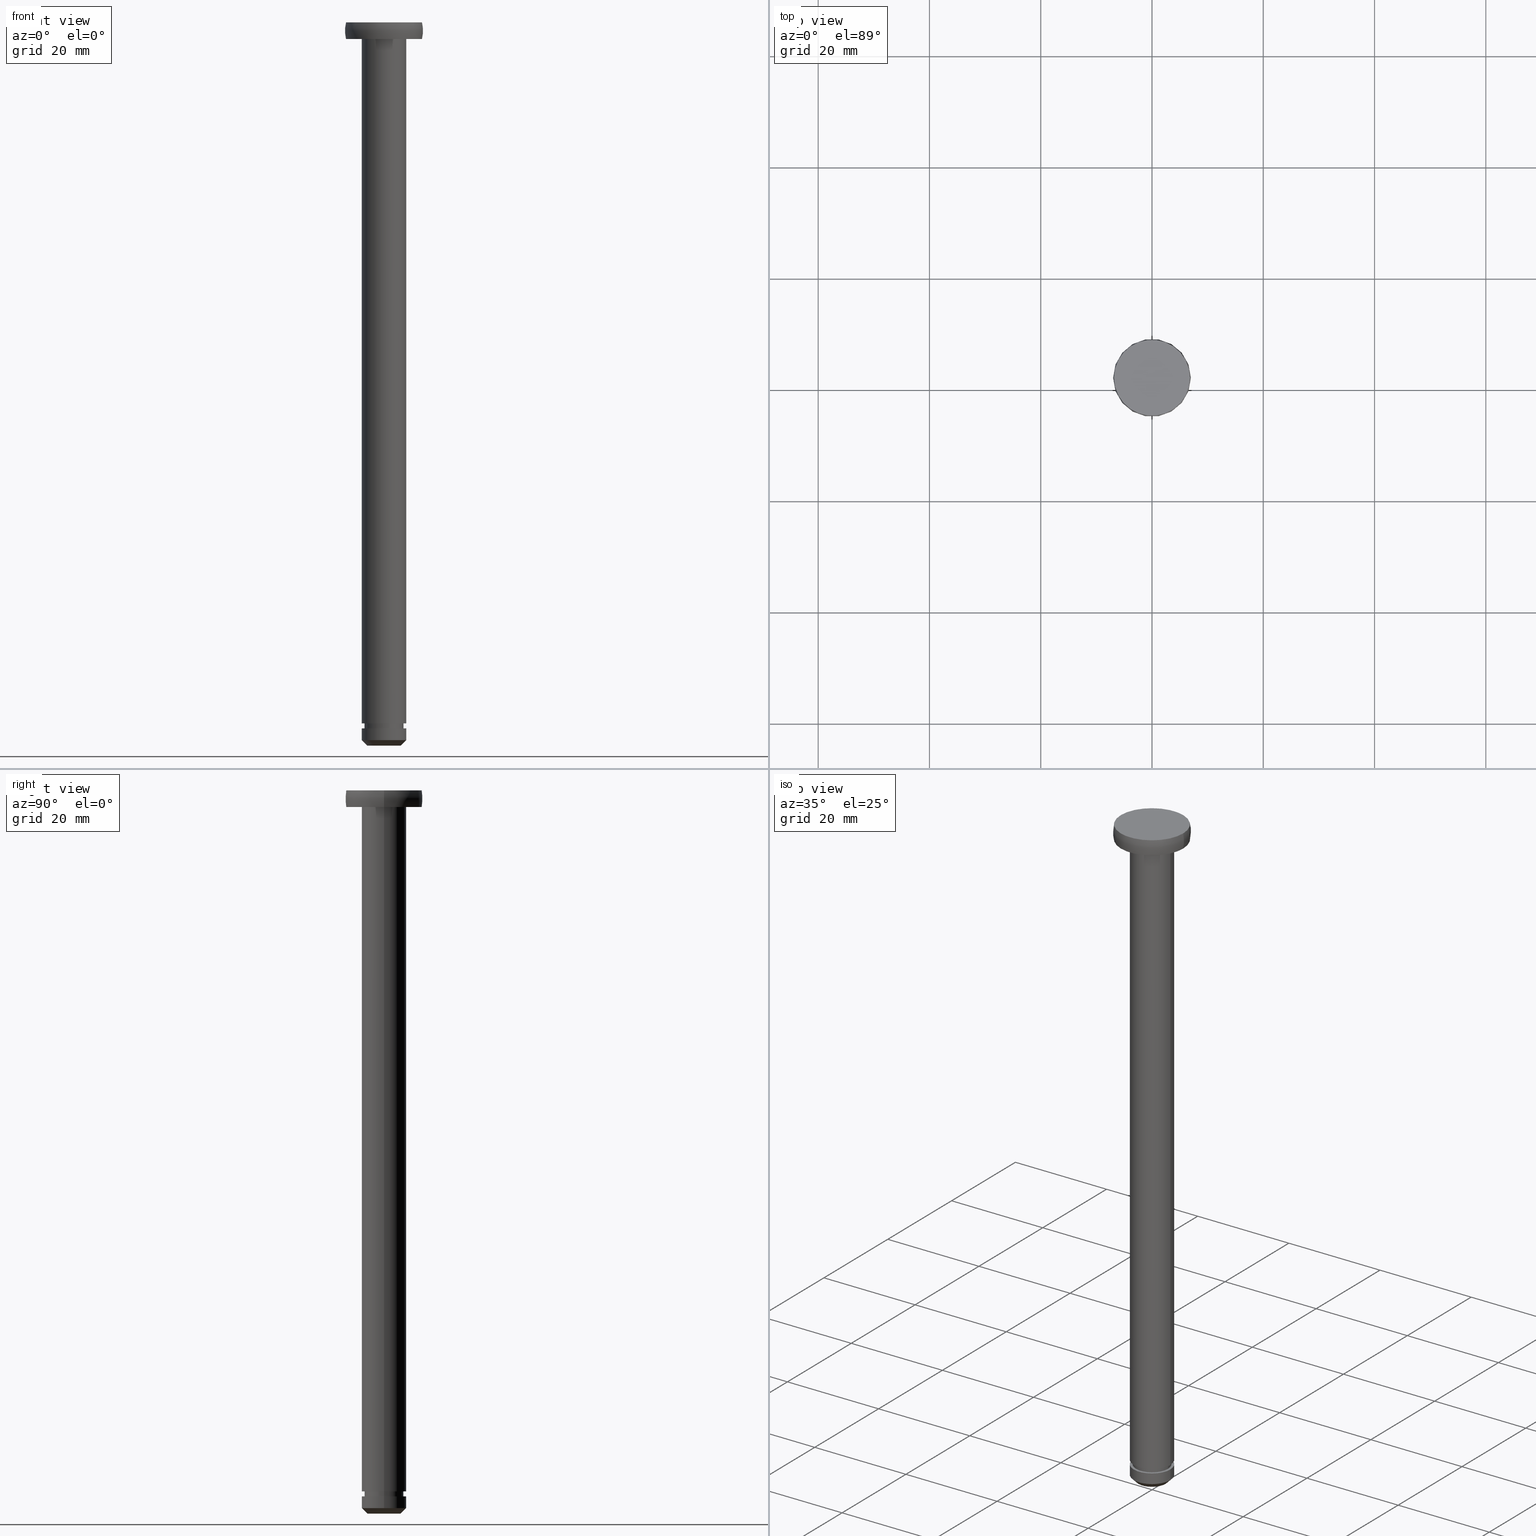
[diagram: canonical four-view strip — front | top / right | iso, engineering-drawing reading convention]
A machine part, canonical four-view strip (front | top / right | iso — engineering-drawing reading convention). The complete STEP part file that produces these views, byte-faithful:
ISO-10303-21;
HEADER;
FILE_DESCRIPTION (( 'STEP AP214' ),
    '1' );
FILE_NAME ('TH_121_8_127.STEP',
    '2016-08-24T01:59:59',
    ( '' ),
    ( '' ),
    'SwSTEP 2.0',
    'SolidWorks 2015',
    '' );
FILE_SCHEMA (( 'AUTOMOTIVE_DESIGN' ));
ENDSEC;

DATA;
#1 = FACE_OUTER_BOUND ( 'NONE', #102, .T. ) ;
#2 = CONTEXT_DEPENDENT_SHAPE_REPRESENTATION ( #333, #464 ) ;
#3 = CARTESIAN_POINT ( 'NONE',  ( 3.500000000000000000, 4.286263797015736600E-016, -126.9000000360870100 ) ) ;
#4 = ORIENTED_EDGE ( 'NONE', *, *, #158, .F. ) ;
#5 = PRODUCT_DEFINITION_SHAPE ( 'NONE', 'NONE',  #153 ) ;
#6 = VERTEX_POINT ( 'NONE', #292 ) ;
#7 = CARTESIAN_POINT ( 'NONE',  ( -0.3572332087698980000, 0.0000000000000000000, -1.500000009021705200 ) ) ;
#8 = CARTESIAN_POINT ( 'NONE',  ( 3.500000000000000000, 0.0000000000000000000, -126.0000000360870000 ) ) ;
#9 = EDGE_CURVE ( 'NONE', #257, #26, #89, .T. ) ;
#10 = SHAPE_DEFINITION_REPRESENTATION ( #55, #355 ) ;
#11 = ORIENTED_EDGE ( 'NONE', *, *, #151, .T. ) ;
#12 = DIRECTION ( 'NONE',  ( 1.000000000000000000, 0.0000000000000000000, 0.0000000000000000000 ) ) ;
#13 = ADVANCED_FACE ( 'NONE', ( #410 ), #370, .T. ) ;
#14 = EDGE_LOOP ( 'NONE', ( #249, #182, #436, #61 ) ) ;
#15 = ADVANCED_FACE ( 'NONE', ( #289, #353 ), #431, .T. ) ;
#16 = DIRECTION ( 'NONE',  ( -1.000000000000000000, 0.0000000000000000000, 0.0000000000000000000 ) ) ;
#17 = CIRCLE ( 'NONE', #266, 4.000000000000000000 ) ;
#18 = DIRECTION ( 'NONE',  ( -1.000000000000000000, 0.0000000000000000000, 0.0000000000000000000 ) ) ;
#19 = LINE ( 'NONE', #377, #84 ) ;
#20 = AXIS2_PLACEMENT_3D ( 'NONE', #265, #199, #33 ) ;
#21 = CARTESIAN_POINT ( 'NONE',  ( 0.0000000000000000000, 0.0000000000000000000, 5.243895595530290800E-014 ) ) ;
#22 = AXIS2_PLACEMENT_3D ( 'NONE', #248, #104, #327 ) ;
#23 = DIRECTION ( 'NONE',  ( 0.0000000000000000000, 0.0000000000000000000, -1.000000000000000000 ) ) ;
#24 = CLOSED_SHELL ( 'NONE', ( #452, #345, #230, #192, #385, #341, #122, #13, #157, #91, #316, #161, #48, #275, #15 ) ) ;
#25 = EDGE_LOOP ( 'NONE', ( #319, #87 ) ) ;
#26 = VERTEX_POINT ( 'NONE', #3 ) ;
#27 = DIRECTION ( 'NONE',  ( 0.0000000000000000000, 0.0000000000000000000, -1.000000000000000000 ) ) ;
#28 = EDGE_CURVE ( 'NONE', #360, #159, #245, .T. ) ;
#29 = DIRECTION ( 'NONE',  ( 0.0000000000000000000, 0.0000000000000000000, -1.000000000000000000 ) ) ;
#30 = CARTESIAN_POINT ( 'NONE',  ( 4.000000000000000000, 0.0000000000000000000, -126.9000000360870100 ) ) ;
#31 = CYLINDRICAL_SURFACE ( 'NONE', #239, 3.999999999999998200 ) ;
#32 = CARTESIAN_POINT ( 'NONE',  ( 0.0000000000000000000, 0.0000000000000000000, -130.0000000360869900 ) ) ;
#33 = DIRECTION ( 'NONE',  ( -1.000000000000000000, 0.0000000000000000000, 0.0000000000000000000 ) ) ;
#34 = ORIENTED_EDGE ( 'NONE', *, *, #151, .F. ) ;
#35 = DIRECTION ( 'NONE',  ( 0.0000000000000000000, 0.0000000000000000000, 1.000000000000000000 ) ) ;
#36 = FACE_OUTER_BOUND ( 'NONE', #120, .T. ) ;
#37 = EDGE_CURVE ( 'NONE', #360, #163, #406, .T. ) ;
#38 = PLANE ( 'NONE',  #466 ) ;
#39 = ORIENTED_EDGE ( 'NONE', *, *, #432, .T. ) ;
#40 = PRESENTATION_LAYER_ASSIGNMENT (  '', '', ( #69 ) ) ;
#41 = FACE_OUTER_BOUND ( 'NONE', #14, .T. ) ;
#42 = DIRECTION ( 'NONE',  ( 0.0000000000000000000, 0.0000000000000000000, -1.000000000000000000 ) ) ;
#43 = DIRECTION ( 'NONE',  ( 0.0000000000000000000, 0.0000000000000000000, -1.000000000000000000 ) ) ;
#44 = AXIS2_PLACEMENT_3D ( 'NONE', #32, #29, #16 ) ;
#45 = DIRECTION ( 'NONE',  ( 0.0000000000000000000, 0.0000000000000000000, -1.000000000000000000 ) ) ;
#46 = VECTOR ( 'NONE', #50, 1000.000000000000000 ) ;
#47 = DIRECTION ( 'NONE',  ( 0.0000000000000000000, 0.0000000000000000000, -1.000000000000000000 ) ) ;
#48 = ADVANCED_FACE ( 'NONE', ( #270, #457 ), #290, .T. ) ;
#49 = ORIENTED_EDGE ( 'NONE', *, *, #330, .F. ) ;
#50 = DIRECTION ( 'NONE',  ( 0.0000000000000000000, 0.0000000000000000000, -1.000000000000000000 ) ) ;
#51 = TOROIDAL_SURFACE ( 'NONE', #210, 0.3572332087698980000, 6.642766791230087600 ) ;
#52 = AXIS2_PLACEMENT_3D ( 'NONE', #183, #123, #12 ) ;
#53 = ORIENTED_EDGE ( 'NONE', *, *, #58, .F. ) ;
#54 = CARTESIAN_POINT ( 'NONE',  ( -3.500000000000000000, 0.0000000000000000000, -126.9000000360870100 ) ) ;
#55 = PRODUCT_DEFINITION_SHAPE ( 'NONE', 'NONE',  #203 ) ;
#56 = EDGE_CURVE ( 'NONE', #439, #237, #19, .T. ) ;
#57 = VERTEX_POINT ( 'NONE', #337 ) ;
#58 = EDGE_CURVE ( 'NONE', #111, #72, #371, .T. ) ;
#59 = AXIS2_PLACEMENT_3D ( 'NONE', #287, #60, #181 ) ;
#60 = DIRECTION ( 'NONE',  ( 0.0000000000000000000, 0.0000000000000000000, 1.000000000000000000 ) ) ;
#61 = ORIENTED_EDGE ( 'NONE', *, *, #247, .F. ) ;
#62 = FACE_OUTER_BOUND ( 'NONE', #208, .T. ) ;
#63 = EDGE_LOOP ( 'NONE', ( #269, #322, #351, #450 ) ) ;
#64 = DIRECTION ( 'NONE',  ( 0.0000000000000000000, 0.0000000000000000000, -1.000000000000000000 ) ) ;
#65 = CYLINDRICAL_SURFACE ( 'NONE', #401, 3.999999999999998200 ) ;
#66 = LINE ( 'NONE', #83, #349 ) ;
#67 = ORIENTED_EDGE ( 'NONE', *, *, #169, .F. ) ;
#68 = DIRECTION ( 'NONE',  ( 1.000000000000000000, 0.0000000000000000000, 0.0000000000000000000 ) ) ;
#69 = STYLED_ITEM ( 'NONE', ( #300 ), #369 ) ;
#70 = COLOUR_RGB ( '',0.7921568627450980000, 0.8196078431372548800, 0.9333333333333333500 ) ;
#71 = DIRECTION ( 'NONE',  ( -0.7071067811865463500, 8.659560562354918100E-017, 0.7071067811865487900 ) ) ;
#72 = VERTEX_POINT ( 'NONE', #375 ) ;
#73 = SHAPE_REPRESENTATION_RELATIONSHIP ( 'NONE' , 'NONE' ,  #362, #241 ) ;
#74 = FACE_OUTER_BOUND ( 'NONE', #25, .T. ) ;
#75 = DIRECTION ( 'NONE',  ( -1.000000000000000000, 0.0000000000000000000, 0.0000000000000000000 ) ) ;
#76 = AXIS2_PLACEMENT_3D ( 'NONE', #207, #180, #331 ) ;
#77 = DIRECTION ( 'NONE',  ( 0.0000000000000000000, 0.0000000000000000000, -1.000000000000000000 ) ) ;
#78 = VERTEX_POINT ( 'NONE', #380 ) ;
#79 = CIRCLE ( 'NONE', #277, 3.000000000000000000 ) ;
#80 = AXIS2_PLACEMENT_3D ( 'NONE', #156, #222, #417 ) ;
#81 = VERTEX_POINT ( 'NONE', #119 ) ;
#82 = DIRECTION ( 'NONE',  ( -1.000000000000000000, 0.0000000000000000000, 0.0000000000000000000 ) ) ;
#83 = CARTESIAN_POINT ( 'NONE',  ( 4.000000000000000000, 4.898587196589412800E-016, 5.243895611412157900E-014 ) ) ;
#84 = VECTOR ( 'NONE', #384, 1000.000000000000000 ) ;
#85 = EDGE_CURVE ( 'NONE', #26, #299, #308, .T. ) ;
#86 = TOROIDAL_SURFACE ( 'NONE', #20, 0.3572332087698980000, 6.642766791230087600 ) ;
#87 = ORIENTED_EDGE ( 'NONE', *, *, #209, .F. ) ;
#88 = AXIS2_PLACEMENT_3D ( 'NONE', #294, #35, #358 ) ;
#89 = LINE ( 'NONE', #468, #392 ) ;
#90 = CARTESIAN_POINT ( 'NONE',  ( -3.500000000000000000, 0.0000000000000000000, 5.243895611412157900E-014 ) ) ;
#91 = ADVANCED_FACE ( 'NONE', ( #36 ), #31, .T. ) ;
#92 = DIRECTION ( 'NONE',  ( 0.0000000000000000000, 0.0000000000000000000, -1.000000000000000000 ) ) ;
#93 = ORIENTED_EDGE ( 'NONE', *, *, #310, .F. ) ;
#94 = CARTESIAN_POINT ( 'NONE',  ( 0.0000000000000000000, 0.0000000000000000000, 5.243895611412157900E-014 ) ) ;
#95 = AXIS2_PLACEMENT_3D ( 'NONE', #354, #45, #307 ) ;
#96 = APPLICATION_PROTOCOL_DEFINITION ( 'draft international standard', 'automotive_design', 1998, #373 ) ;
#97 =( LENGTH_UNIT ( ) NAMED_UNIT ( * ) SI_UNIT ( .MILLI., .METRE. ) );
#98 = CYLINDRICAL_SURFACE ( 'NONE', #95, 3.500000000000000000 ) ;
#99 = EDGE_LOOP ( 'NONE', ( #176, #172 ) ) ;
#100 = ORIENTED_EDGE ( 'NONE', *, *, #344, .F. ) ;
#101 = FACE_OUTER_BOUND ( 'NONE', #240, .T. ) ;
#102 = EDGE_LOOP ( 'NONE', ( #67, #53 ) ) ;
#103 = AXIS2_PLACEMENT_3D ( 'NONE', #437, #425, #422 ) ;
#104 = DIRECTION ( 'NONE',  ( 0.0000000000000000000, 0.0000000000000000000, -1.000000000000000000 ) ) ;
#105 = DIRECTION ( 'NONE',  ( 0.0000000000000000000, 0.0000000000000000000, -1.000000000000000000 ) ) ;
#106 = APPLICATION_PROTOCOL_DEFINITION ( 'draft international standard', 'automotive_design', 1998, #400 ) ;
#107 = EDGE_CURVE ( 'NONE', #299, #26, #205, .T. ) ;
#108 =( GEOMETRIC_REPRESENTATION_CONTEXT ( 3 ) GLOBAL_UNCERTAINTY_ASSIGNED_CONTEXT ( ( #264 ) ) GLOBAL_UNIT_ASSIGNED_CONTEXT ( ( #97, #170, #357 ) ) REPRESENTATION_CONTEXT ( 'NONE', 'WORKASPACE' ) );
#109 = CARTESIAN_POINT ( 'NONE',  ( 3.500000000000000000, 4.286263797015736600E-016, -126.0000000360870000 ) ) ;
#110 = CARTESIAN_POINT ( 'NONE',  ( 0.0000000000000000000, 0.0000000000000000000, 5.243895611412157900E-014 ) ) ;
#111 = VERTEX_POINT ( 'NONE', #334 ) ;
#112 = DIRECTION ( 'NONE',  ( -1.000000000000000000, 0.0000000000000000000, 0.0000000000000000000 ) ) ;
#113 = VERTEX_POINT ( 'NONE', #224 ) ;
#114 = MECHANICAL_DESIGN_GEOMETRIC_PRESENTATION_REPRESENTATION (  '', ( #69 ), #138 ) ;
#115 = CARTESIAN_POINT ( 'NONE',  ( 0.0000000000000000000, 0.0000000000000000000, -126.9000000360870100 ) ) ;
#116 = ORIENTED_EDGE ( 'NONE', *, *, #129, .T. ) ;
#117 = DIRECTION ( 'NONE',  ( 0.0000000000000000000, 0.0000000000000000000, -1.000000000000000000 ) ) ;
#118 = AXIS2_PLACEMENT_3D ( 'NONE', #190, #446, #419 ) ;
#119 = CARTESIAN_POINT ( 'NONE',  ( 6.828427118366800400, 8.362411413718889200E-016, -3.000000018043434700 ) ) ;
#120 = EDGE_LOOP ( 'NONE', ( #201, #461, #324, #454 ) ) ;
#121 = DIRECTION ( 'NONE',  ( 0.7071067811865463500, 0.0000000000000000000, 0.7071067811865487900 ) ) ;
#122 = ADVANCED_FACE ( 'NONE', ( #74 ), #314, .T. ) ;
#123 = DIRECTION ( 'NONE',  ( 0.0000000000000000000, -0.0000000000000000000, 1.000000000000000000 ) ) ;
#124 = AXIS2_PLACEMENT_3D ( 'NONE', #438, #150, #348 ) ;
#125 = FACE_OUTER_BOUND ( 'NONE', #433, .T. ) ;
#126 = DIRECTION ( 'NONE',  ( 0.0000000000000000000, 0.0000000000000000000, -1.000000000000000000 ) ) ;
#127 = VERTEX_POINT ( 'NONE', #187 ) ;
#128 = APPLICATION_PROTOCOL_DEFINITION ( 'draft international standard', 'automotive_design', 1998, #216 ) ;
#129 = EDGE_CURVE ( 'NONE', #81, #6, #145, .T. ) ;
#130 = LINE ( 'NONE', #160, #347 ) ;
#131 = AXIS2_PLACEMENT_3D ( 'NONE', #361, #133, #68 ) ;
#132 = EDGE_CURVE ( 'NONE', #163, #424, #155, .T. ) ;
#133 = DIRECTION ( 'NONE',  ( 0.0000000000000000000, 0.0000000000000000000, 1.000000000000000000 ) ) ;
#134 = CIRCLE ( 'NONE', #146, 4.000000000000000000 ) ;
#135 =( NAMED_UNIT ( * ) PLANE_ANGLE_UNIT ( ) SI_UNIT ( $, .RADIAN. ) );
#136 = CARTESIAN_POINT ( 'NONE',  ( 0.0000000000000000000, 0.0000000000000000000, -3.000000018043495100 ) ) ;
#137 = EDGE_LOOP ( 'NONE', ( #11, #335, #282, #165 ) ) ;
#138 =( GEOMETRIC_REPRESENTATION_CONTEXT ( 3 ) GLOBAL_UNCERTAINTY_ASSIGNED_CONTEXT ( ( #444 ) ) GLOBAL_UNIT_ASSIGNED_CONTEXT ( ( #367, #135, #260 ) ) REPRESENTATION_CONTEXT ( 'NONE', 'WORKASPACE' ) );
#139 = ORIENTED_EDGE ( 'NONE', *, *, #310, .T. ) ;
#140 = AXIS2_PLACEMENT_3D ( 'NONE', #8, #77, #388 ) ;
#141 = CARTESIAN_POINT ( 'NONE',  ( -4.000000000000000000, 0.0000000000000000000, -3.000000018043495100 ) ) ;
#142 = CARTESIAN_POINT ( 'NONE',  ( -4.000000000000000000, 0.0000000000000000000, -126.0000000360870000 ) ) ;
#143 = CIRCLE ( 'NONE', #442, 6.642766791230087600 ) ;
#144 = CARTESIAN_POINT ( 'NONE',  ( 3.000000000000000000, 0.0000000000000000000, -130.0000000360869900 ) ) ;
#145 = CIRCLE ( 'NONE', #273, 6.828427118366800400 ) ;
#146 = AXIS2_PLACEMENT_3D ( 'NONE', #332, #318, #456 ) ;
#147 = DIRECTION ( 'NONE',  ( 1.000000000000000000, 0.0000000000000000000, 0.0000000000000000000 ) ) ;
#148 = ORIENTED_EDGE ( 'NONE', *, *, #382, .F. ) ;
#149 = PRODUCT ( 'shaft', 'shaft', '', ( #321 ) ) ;
#150 = DIRECTION ( 'NONE',  ( -0.0000000000000000000, -0.0000000000000000000, 1.000000000000000000 ) ) ;
#151 = EDGE_CURVE ( 'NONE', #113, #257, #188, .T. ) ;
#152 = DIRECTION ( 'NONE',  ( -1.000000000000000000, 0.0000000000000000000, 0.0000000000000000000 ) ) ;
#153 = PRODUCT_DEFINITION ( 'UNKNOWN', '', #285, #235 ) ;
#154 = DIRECTION ( 'NONE',  ( 0.0000000000000000000, 0.0000000000000000000, -1.000000000000000000 ) ) ;
#155 = CIRCLE ( 'NONE', #80, 3.999999999999997300 ) ;
#156 = CARTESIAN_POINT ( 'NONE',  ( 0.0000000000000000000, 0.0000000000000000000, -129.0000000360869900 ) ) ;
#157 = ADVANCED_FACE ( 'NONE', ( #62 ), #271, .T. ) ;
#158 = EDGE_CURVE ( 'NONE', #237, #57, #134, .T. ) ;
#159 = VERTEX_POINT ( 'NONE', #339 ) ;
#160 = CARTESIAN_POINT ( 'NONE',  ( 3.999999999999998200, 4.898587196589410900E-016, 5.243895611412157900E-014 ) ) ;
#161 = ADVANCED_FACE ( 'NONE', ( #228 ), #286, .T. ) ;
#162 = VECTOR ( 'NONE', #121, 1000.000000000000000 ) ;
#163 = VERTEX_POINT ( 'NONE', #309 ) ;
#164 = CARTESIAN_POINT ( 'NONE',  ( 0.0000000000000000000, 0.0000000000000000000, 5.243895595530290800E-014 ) ) ;
#165 = ORIENTED_EDGE ( 'NONE', *, *, #283, .F. ) ;
#166 = DIRECTION ( 'NONE',  ( 0.0000000000000000000, 0.0000000000000000000, -1.000000000000000000 ) ) ;
#167 = AXIS2_PLACEMENT_3D ( 'NONE', #291, #408, #402 ) ;
#168 = CYLINDRICAL_SURFACE ( 'NONE', #423, 4.000000000000000000 ) ;
#169 = EDGE_CURVE ( 'NONE', #72, #111, #178, .T. ) ;
#170 =( NAMED_UNIT ( * ) PLANE_ANGLE_UNIT ( ) SI_UNIT ( $, .RADIAN. ) );
#171 = AXIS2_PLACEMENT_3D ( 'NONE', #189, #343, #18 ) ;
#172 = ORIENTED_EDGE ( 'NONE', *, *, #223, .T. ) ;
#173 = AXIS2_PLACEMENT_3D ( 'NONE', #232, #231, #229 ) ;
#174 = VECTOR ( 'NONE', #71, 1000.000000000000000 ) ;
#175 = EDGE_CURVE ( 'NONE', #6, #81, #415, .T. ) ;
#176 = ORIENTED_EDGE ( 'NONE', *, *, #158, .T. ) ;
#177 =( NAMED_UNIT ( * ) PLANE_ANGLE_UNIT ( ) SI_UNIT ( $, .RADIAN. ) );
#178 = CIRCLE ( 'NONE', #197, 4.000000000000000000 ) ;
#179 = DIRECTION ( 'NONE',  ( -1.000000000000000000, -1.224646799147353200E-016, 0.0000000000000000000 ) ) ;
#180 = DIRECTION ( 'NONE',  ( 0.0000000000000000000, 0.0000000000000000000, -1.000000000000000000 ) ) ;
#181 = DIRECTION ( 'NONE',  ( 1.000000000000000000, 0.0000000000000000000, 0.0000000000000000000 ) ) ;
#182 = ORIENTED_EDGE ( 'NONE', *, *, #37, .T. ) ;
#183 = CARTESIAN_POINT ( 'NONE',  ( 6.828427118366800400, 0.0000000000000000000, 5.243895603471224000E-014 ) ) ;
#184 = DIRECTION ( 'NONE',  ( -1.224646799147353200E-016, 1.000000000000000000, 0.0000000000000000000 ) ) ;
#185 = PRODUCT ( 'TH_121_8_127', 'TH_121_8_127', '', ( #243 ) ) ;
#186 = AXIS2_PLACEMENT_3D ( 'NONE', #323, #303, #366 ) ;
#187 = CARTESIAN_POINT ( 'NONE',  ( 6.828427118366800400, 8.362411413718889200E-016, 5.243895595530290800E-014 ) ) ;
#188 = CIRCLE ( 'NONE', #103, 3.500000000000000000 ) ;
#189 = CARTESIAN_POINT ( 'NONE',  ( 0.0000000000000000000, 0.0000000000000000000, -126.9000000360870100 ) ) ;
#190 = CARTESIAN_POINT ( 'NONE',  ( 0.0000000000000000000, 0.0000000000000000000, -126.9000000360870100 ) ) ;
#191 = DIRECTION ( 'NONE',  ( 0.0000000000000000000, 0.0000000000000000000, -1.000000000000000000 ) ) ;
#192 = ADVANCED_FACE ( 'NONE', ( #41 ), #306, .T. ) ;
#193 = FACE_OUTER_BOUND ( 'NONE', #262, .T. ) ;
#194 = EDGE_LOOP ( 'NONE', ( #315, #148 ) ) ;
#195 = ORIENTED_EDGE ( 'NONE', *, *, #129, .F. ) ;
#196 = DIRECTION ( 'NONE',  ( -1.000000000000000000, 0.0000000000000000000, 0.0000000000000000000 ) ) ;
#197 = AXIS2_PLACEMENT_3D ( 'NONE', #272, #267, #263 ) ;
#198 = CARTESIAN_POINT ( 'NONE',  ( 0.3572332087698980000, 4.374845056691938000E-017, -1.500000009021705200 ) ) ;
#199 = DIRECTION ( 'NONE',  ( 0.0000000000000000000, 0.0000000000000000000, -1.000000000000000000 ) ) ;
#200 = DIRECTION ( 'NONE',  ( -1.000000000000000000, 0.0000000000000000000, 0.0000000000000000000 ) ) ;
#201 = ORIENTED_EDGE ( 'NONE', *, *, #359, .F. ) ;
#202 = EDGE_CURVE ( 'NONE', #159, #360, #79, .T. ) ;
#203 = PRODUCT_DEFINITION ( 'UNKNOWN', '', #225, #236 ) ;
#204 = ORIENTED_EDGE ( 'NONE', *, *, #247, .T. ) ;
#205 = CIRCLE ( 'NONE', #215, 3.500000000000000000 ) ;
#206 = DIRECTION ( 'NONE',  ( -1.000000000000000000, 0.0000000000000000000, 0.0000000000000000000 ) ) ;
#207 = CARTESIAN_POINT ( 'NONE',  ( 4.000000000000000000, 0.0000000000000000000, -3.000000018043465400 ) ) ;
#208 = EDGE_LOOP ( 'NONE', ( #233, #284, #204, #381 ) ) ;
#209 = EDGE_CURVE ( 'NONE', #127, #78, #363, .T. ) ;
#210 = AXIS2_PLACEMENT_3D ( 'NONE', #462, #393, #364 ) ;
#211 = DIRECTION ( 'NONE',  ( -1.000000000000000000, 0.0000000000000000000, 0.0000000000000000000 ) ) ;
#212 = CIRCLE ( 'NONE', #234, 3.500000000000000000 ) ;
#213 = CIRCLE ( 'NONE', #352, 6.642766791230087600 ) ;
#214 = CARTESIAN_POINT ( 'NONE',  ( 0.0000000000000000000, 0.0000000000000000000, -126.0000000360870000 ) ) ;
#215 = AXIS2_PLACEMENT_3D ( 'NONE', #115, #117, #112 ) ;
#216 = APPLICATION_CONTEXT ( 'automotive_design' ) ;
#217 = DIRECTION ( 'NONE',  ( 0.0000000000000000000, 0.0000000000000000000, -1.000000000000000000 ) ) ;
#218 = CARTESIAN_POINT ( 'NONE',  ( 0.0000000000000000000, 0.0000000000000000000, -130.0000000360869900 ) ) ;
#219 = ORIENTED_EDGE ( 'NONE', *, *, #28, .T. ) ;
#220 = AXIS2_PLACEMENT_3D ( 'NONE', #383, #420, #336 ) ;
#221 = ORIENTED_EDGE ( 'NONE', *, *, #312, .T. ) ;
#222 = DIRECTION ( 'NONE',  ( 0.0000000000000000000, 0.0000000000000000000, -1.000000000000000000 ) ) ;
#223 = EDGE_CURVE ( 'NONE', #57, #237, #258, .T. ) ;
#224 = CARTESIAN_POINT ( 'NONE',  ( -3.500000000000000000, 0.0000000000000000000, -126.0000000360870000 ) ) ;
#225 = PRODUCT_DEFINITION_FORMATION_WITH_SPECIFIED_SOURCE ( 'ANY', '', #185, .NOT_KNOWN. ) ;
#226 = DIRECTION ( 'NONE',  ( -1.000000000000000000, 0.0000000000000000000, 0.0000000000000000000 ) ) ;
#227 = EDGE_LOOP ( 'NONE', ( #311, #139, #4, #244 ) ) ;
#228 = FACE_OUTER_BOUND ( 'NONE', #63, .T. ) ;
#229 = DIRECTION ( 'NONE',  ( -1.000000000000000000, 0.0000000000000000000, 0.0000000000000000000 ) ) ;
#230 = ADVANCED_FACE ( 'NONE', ( #125 ), #65, .T. ) ;
#231 = DIRECTION ( 'NONE',  ( 0.0000000000000000000, 0.0000000000000000000, -1.000000000000000000 ) ) ;
#232 = CARTESIAN_POINT ( 'NONE',  ( 0.0000000000000000000, 0.0000000000000000000, -3.000000018043434700 ) ) ;
#233 = ORIENTED_EDGE ( 'NONE', *, *, #37, .F. ) ;
#234 = AXIS2_PLACEMENT_3D ( 'NONE', #214, #238, #206 ) ;
#235 = PRODUCT_DEFINITION_CONTEXT ( 'detailed design', #400, 'design' ) ;
#236 = PRODUCT_DEFINITION_CONTEXT ( 'detailed design', #296, 'design' ) ;
#237 = VERTEX_POINT ( 'NONE', #142 ) ;
#238 = DIRECTION ( 'NONE',  ( 0.0000000000000000000, 0.0000000000000000000, -1.000000000000000000 ) ) ;
#239 = AXIS2_PLACEMENT_3D ( 'NONE', #350, #43, #279 ) ;
#240 = EDGE_LOOP ( 'NONE', ( #39, #276, #387, #418 ) ) ;
#241 = ADVANCED_BREP_SHAPE_REPRESENTATION ( '', ( #369, #320 ), #338 ) ;
#242 = AXIS2_PLACEMENT_3D ( 'NONE', #274, #304, #255 ) ;
#243 = PRODUCT_CONTEXT ( 'NONE', #373, 'mechanical' ) ;
#244 = ORIENTED_EDGE ( 'NONE', *, *, #56, .F. ) ;
#245 = CIRCLE ( 'NONE', #44, 3.000000000000000000 ) ;
#246 =( NAMED_UNIT ( * ) SI_UNIT ( $, .STERADIAN. ) SOLID_ANGLE_UNIT ( ) );
#247 = EDGE_CURVE ( 'NONE', #159, #424, #259, .T. ) ;
#248 = CARTESIAN_POINT ( 'NONE',  ( 0.0000000000000000000, 0.0000000000000000000, -130.0000000360869900 ) ) ;
#249 = ORIENTED_EDGE ( 'NONE', *, *, #28, .F. ) ;
#250 = CIRCLE ( 'NONE', #293, 6.828427118366800400 ) ;
#251 = PRODUCT_RELATED_PRODUCT_CATEGORY ( 'part', '', ( #185 ) ) ;
#252 = DIRECTION ( 'NONE',  ( 0.0000000000000000000, 0.0000000000000000000, 1.000000000000000000 ) ) ;
#253 = CARTESIAN_POINT ( 'NONE',  ( -3.999999999999998200, 0.0000000000000000000, 5.243895611412157900E-014 ) ) ;
#254 = FILL_AREA_STYLE_COLOUR ( '', #70 ) ;
#255 = DIRECTION ( 'NONE',  ( 1.000000000000000000, 0.0000000000000000000, 0.0000000000000000000 ) ) ;
#256 = CARTESIAN_POINT ( 'NONE',  ( -3.000000000000000000, 3.673940397442059900E-016, -130.0000000360869900 ) ) ;
#257 = VERTEX_POINT ( 'NONE', #109 ) ;
#258 = CIRCLE ( 'NONE', #325, 4.000000000000000000 ) ;
#259 = LINE ( 'NONE', #144, #162 ) ;
#260 =( NAMED_UNIT ( * ) SI_UNIT ( $, .STERADIAN. ) SOLID_ANGLE_UNIT ( ) );
#261 = FACE_BOUND ( 'NONE', #288, .T. ) ;
#262 = EDGE_LOOP ( 'NONE', ( #93, #368, #447, #340 ) ) ;
#263 = DIRECTION ( 'NONE',  ( -1.000000000000000000, 0.0000000000000000000, 0.0000000000000000000 ) ) ;
#264 = UNCERTAINTY_MEASURE_WITH_UNIT (LENGTH_MEASURE( 1.000000000000000100E-005 ), #97, 'distance_accuracy_value', 'NONE');
#265 = CARTESIAN_POINT ( 'NONE',  ( 0.0000000000000000000, 0.0000000000000000000, -1.500000009021705200 ) ) ;
#266 = AXIS2_PLACEMENT_3D ( 'NONE', #136, #27, #82 ) ;
#267 = DIRECTION ( 'NONE',  ( 0.0000000000000000000, 0.0000000000000000000, -1.000000000000000000 ) ) ;
#268 = FACE_OUTER_BOUND ( 'NONE', #137, .T. ) ;
#269 = ORIENTED_EDGE ( 'NONE', *, *, #9, .F. ) ;
#270 = FACE_OUTER_BOUND ( 'NONE', #99, .T. ) ;
#271 = CONICAL_SURFACE ( 'NONE', #124, 3.000000000000000000, 0.7853981633974466100 ) ;
#272 = CARTESIAN_POINT ( 'NONE',  ( 0.0000000000000000000, 0.0000000000000000000, -126.9000000360870100 ) ) ;
#273 = AXIS2_PLACEMENT_3D ( 'NONE', #453, #449, #441 ) ;
#274 = CARTESIAN_POINT ( 'NONE',  ( 0.0000000000000000000, 0.0000000000000000000, -130.0000000360869900 ) ) ;
#275 = ADVANCED_FACE ( 'NONE', ( #193 ), #168, .T. ) ;
#276 = ORIENTED_EDGE ( 'NONE', *, *, #344, .T. ) ;
#277 = AXIS2_PLACEMENT_3D ( 'NONE', #218, #217, #196 ) ;
#278 = FILL_AREA_STYLE ('',( #414 ) ) ;
#279 = DIRECTION ( 'NONE',  ( -1.000000000000000000, 0.0000000000000000000, 0.0000000000000000000 ) ) ;
#280 = LINE ( 'NONE', #90, #460 ) ;
#281 =( NAMED_UNIT ( * ) PLANE_ANGLE_UNIT ( ) SI_UNIT ( $, .RADIAN. ) );
#282 = ORIENTED_EDGE ( 'NONE', *, *, #107, .F. ) ;
#283 = EDGE_CURVE ( 'NONE', #113, #299, #280, .T. ) ;
#284 = ORIENTED_EDGE ( 'NONE', *, *, #202, .F. ) ;
#285 = PRODUCT_DEFINITION_FORMATION_WITH_SPECIFIED_SOURCE ( 'ANY', '', #149, .NOT_KNOWN. ) ;
#286 = CYLINDRICAL_SURFACE ( 'NONE', #220, 3.500000000000000000 ) ;
#287 = CARTESIAN_POINT ( 'NONE',  ( 0.0000000000000000000, 0.0000000000000000000, 0.0000000000000000000 ) ) ;
#288 = EDGE_LOOP ( 'NONE', ( #430, #409 ) ) ;
#289 = FACE_OUTER_BOUND ( 'NONE', #365, .T. ) ;
#290 = PLANE ( 'NONE',  #140 ) ;
#291 = CARTESIAN_POINT ( 'NONE',  ( 0.0000000000000000000, 0.0000000000000000000, -3.000000018043495100 ) ) ;
#292 = CARTESIAN_POINT ( 'NONE',  ( -6.828427118366800400, 0.0000000000000000000, -3.000000018043434700 ) ) ;
#293 = AXIS2_PLACEMENT_3D ( 'NONE', #21, #23, #211 ) ;
#294 = CARTESIAN_POINT ( 'NONE',  ( 0.0000000000000000000, 0.0000000000000000000, 0.0000000000000000000 ) ) ;
#295 = CARTESIAN_POINT ( 'NONE',  ( 0.0000000000000000000, 0.0000000000000000000, 5.243895611412157900E-014 ) ) ;
#296 = APPLICATION_CONTEXT ( 'automotive_design' ) ;
#297 = COLOUR_RGB ( '',0.7921568627450980000, 0.8196078431372548800, 0.9333333333333333500 ) ;
#298 = ITEM_DEFINED_TRANSFORMATION ( 'NONE', 'NONE', #88,  #320 ) ;
#299 = VERTEX_POINT ( 'NONE', #54 ) ;
#300 = PRESENTATION_STYLE_ASSIGNMENT (( #411 ) ) ;
#301 = ORIENTED_EDGE ( 'NONE', *, *, #209, .T. ) ;
#302 = APPLICATION_PROTOCOL_DEFINITION ( 'draft international standard', 'automotive_design', 1998, #296 ) ;
#303 = DIRECTION ( 'NONE',  ( 0.0000000000000000000, 0.0000000000000000000, -1.000000000000000000 ) ) ;
#304 = DIRECTION ( 'NONE',  ( -0.0000000000000000000, -0.0000000000000000000, 1.000000000000000000 ) ) ;
#305 = AXIS2_PLACEMENT_3D ( 'NONE', #164, #154, #152 ) ;
#306 = CONICAL_SURFACE ( 'NONE', #242, 3.000000000000000000, 0.7853981633974466100 ) ;
#307 = DIRECTION ( 'NONE',  ( -1.000000000000000000, 0.0000000000000000000, 0.0000000000000000000 ) ) ;
#308 = CIRCLE ( 'NONE', #171, 3.500000000000000000 ) ;
#309 = CARTESIAN_POINT ( 'NONE',  ( -3.999999999999997300, 4.898587196589409900E-016, -129.0000000360869900 ) ) ;
#310 = EDGE_CURVE ( 'NONE', #426, #57, #66, .T. ) ;
#311 = ORIENTED_EDGE ( 'NONE', *, *, #427, .T. ) ;
#312 = EDGE_CURVE ( 'NONE', #78, #6, #213, .T. ) ;
#313 = PRODUCT_RELATED_PRODUCT_CATEGORY ( 'part', '', ( #149 ) ) ;
#314 = PLANE ( 'NONE',  #52 ) ;
#315 = ORIENTED_EDGE ( 'NONE', *, *, #427, .F. ) ;
#316 = ADVANCED_FACE ( 'NONE', ( #261, #1 ), #38, .T. ) ;
#317 = CYLINDRICAL_SURFACE ( 'NONE', #372, 4.000000000000000000 ) ;
#318 = DIRECTION ( 'NONE',  ( 0.0000000000000000000, 0.0000000000000000000, -1.000000000000000000 ) ) ;
#319 = ORIENTED_EDGE ( 'NONE', *, *, #432, .F. ) ;
#320 = AXIS2_PLACEMENT_3D ( 'NONE', #463, #252, #429 ) ;
#321 = PRODUCT_CONTEXT ( 'NONE', #216, 'mechanical' ) ;
#322 = ORIENTED_EDGE ( 'NONE', *, *, #407, .T. ) ;
#323 = CARTESIAN_POINT ( 'NONE',  ( 0.0000000000000000000, 0.0000000000000000000, -129.0000000360869900 ) ) ;
#324 = ORIENTED_EDGE ( 'NONE', *, *, #330, .T. ) ;
#325 = AXIS2_PLACEMENT_3D ( 'NONE', #390, #42, #75 ) ;
#326 = ORIENTED_EDGE ( 'NONE', *, *, #175, .T. ) ;
#327 = DIRECTION ( 'NONE',  ( -1.000000000000000000, 0.0000000000000000000, -0.0000000000000000000 ) ) ;
#328 =( LENGTH_UNIT ( ) NAMED_UNIT ( * ) SI_UNIT ( .MILLI., .METRE. ) );
#329 = CARTESIAN_POINT ( 'NONE',  ( 3.999999999999997300, 0.0000000000000000000, -129.0000000360869900 ) ) ;
#330 = EDGE_CURVE ( 'NONE', #72, #163, #342, .T. ) ;
#331 = DIRECTION ( 'NONE',  ( -1.000000000000000000, 0.0000000000000000000, -0.0000000000000000000 ) ) ;
#332 = CARTESIAN_POINT ( 'NONE',  ( 0.0000000000000000000, 0.0000000000000000000, -126.0000000360870000 ) ) ;
#333 =( REPRESENTATION_RELATIONSHIP ('NONE','NONE', #355, #362 ) REPRESENTATION_RELATIONSHIP_WITH_TRANSFORMATION ( #298 )SHAPE_REPRESENTATION_RELATIONSHIP( ) );
#334 = CARTESIAN_POINT ( 'NONE',  ( 4.000000000000000000, 4.898587196589412800E-016, -126.9000000360870100 ) ) ;
#335 = ORIENTED_EDGE ( 'NONE', *, *, #9, .T. ) ;
#336 = DIRECTION ( 'NONE',  ( -1.000000000000000000, 0.0000000000000000000, 0.0000000000000000000 ) ) ;
#337 = CARTESIAN_POINT ( 'NONE',  ( 4.000000000000000000, 4.898587196589412800E-016, -126.0000000360870000 ) ) ;
#338 =( GEOMETRIC_REPRESENTATION_CONTEXT ( 3 ) GLOBAL_UNCERTAINTY_ASSIGNED_CONTEXT ( ( #389 ) ) GLOBAL_UNIT_ASSIGNED_CONTEXT ( ( #328, #177, #246 ) ) REPRESENTATION_CONTEXT ( 'NONE', 'WORKASPACE' ) );
#339 = CARTESIAN_POINT ( 'NONE',  ( 3.000000000000000000, 0.0000000000000000000, -130.0000000360869900 ) ) ;
#340 = ORIENTED_EDGE ( 'NONE', *, *, #223, .F. ) ;
#341 = ADVANCED_FACE ( 'NONE', ( #421 ), #86, .T. ) ;
#342 = LINE ( 'NONE', #253, #46 ) ;
#343 = DIRECTION ( 'NONE',  ( 0.0000000000000000000, 0.0000000000000000000, -1.000000000000000000 ) ) ;
#344 = EDGE_CURVE ( 'NONE', #127, #81, #143, .T. ) ;
#345 = ADVANCED_FACE ( 'NONE', ( #268 ), #98, .T. ) ;
#346 = ORIENTED_EDGE ( 'NONE', *, *, #202, .T. ) ;
#347 = VECTOR ( 'NONE', #166, 1000.000000000000000 ) ;
#348 = DIRECTION ( 'NONE',  ( 1.000000000000000000, 0.0000000000000000000, 0.0000000000000000000 ) ) ;
#349 = VECTOR ( 'NONE', #47, 1000.000000000000000 ) ;
#350 = CARTESIAN_POINT ( 'NONE',  ( 0.0000000000000000000, 0.0000000000000000000, 5.243895611412157900E-014 ) ) ;
#351 = ORIENTED_EDGE ( 'NONE', *, *, #283, .T. ) ;
#352 = AXIS2_PLACEMENT_3D ( 'NONE', #7, #443, #412 ) ;
#353 = FACE_BOUND ( 'NONE', #194, .T. ) ;
#354 = CARTESIAN_POINT ( 'NONE',  ( 0.0000000000000000000, 0.0000000000000000000, 5.243895611412157900E-014 ) ) ;
#355 = SHAPE_REPRESENTATION ( 'TH_121_8_127', ( #131, #88 ), #108 ) ;
#356 = PRESENTATION_STYLE_ASSIGNMENT (( #397 ) ) ;
#357 =( NAMED_UNIT ( * ) SI_UNIT ( $, .STERADIAN. ) SOLID_ANGLE_UNIT ( ) );
#358 = DIRECTION ( 'NONE',  ( 1.000000000000000000, 0.0000000000000000000, 0.0000000000000000000 ) ) ;
#359 = EDGE_CURVE ( 'NONE', #111, #424, #130, .T. ) ;
#360 = VERTEX_POINT ( 'NONE', #379 ) ;
#361 = CARTESIAN_POINT ( 'NONE',  ( 0.0000000000000000000, 0.0000000000000000000, 0.0000000000000000000 ) ) ;
#362 = SHAPE_REPRESENTATION ( 'shaft', ( #320 ), #338 ) ;
#363 = CIRCLE ( 'NONE', #305, 6.828427118366800400 ) ;
#364 = DIRECTION ( 'NONE',  ( -1.000000000000000000, 0.0000000000000000000, 0.0000000000000000000 ) ) ;
#365 = EDGE_LOOP ( 'NONE', ( #326, #116 ) ) ;
#366 = DIRECTION ( 'NONE',  ( -1.000000000000000000, 0.0000000000000000000, 0.0000000000000000000 ) ) ;
#367 =( LENGTH_UNIT ( ) NAMED_UNIT ( * ) SI_UNIT ( .MILLI., .METRE. ) );
#368 = ORIENTED_EDGE ( 'NONE', *, *, #382, .T. ) ;
#369 = MANIFOLD_SOLID_BREP ( '��]1', #24 ) ;
#370 = PLANE ( 'NONE',  #22 ) ;
#371 = CIRCLE ( 'NONE', #118, 4.000000000000000000 ) ;
#372 = AXIS2_PLACEMENT_3D ( 'NONE', #295, #64, #200 ) ;
#373 = APPLICATION_CONTEXT ( 'automotive_design' ) ;
#374 = ORIENTED_EDGE ( 'NONE', *, *, #407, .F. ) ;
#375 = CARTESIAN_POINT ( 'NONE',  ( -4.000000000000000000, 0.0000000000000000000, -126.9000000360870100 ) ) ;
#376 = CARTESIAN_POINT ( 'NONE',  ( 4.000000000000000000, 4.898587196589412800E-016, -3.000000018043495100 ) ) ;
#377 = CARTESIAN_POINT ( 'NONE',  ( -4.000000000000000000, 0.0000000000000000000, 5.243895611412157900E-014 ) ) ;
#378 = ORIENTED_EDGE ( 'NONE', *, *, #169, .T. ) ;
#379 = CARTESIAN_POINT ( 'NONE',  ( -3.000000000000000000, 4.286263797015734600E-016, -130.0000000360869900 ) ) ;
#380 = CARTESIAN_POINT ( 'NONE',  ( -6.828427118366800400, 0.0000000000000000000, 5.243895595530290800E-014 ) ) ;
#381 = ORIENTED_EDGE ( 'NONE', *, *, #405, .T. ) ;
#382 = EDGE_CURVE ( 'NONE', #426, #439, #428, .T. ) ;
#383 = CARTESIAN_POINT ( 'NONE',  ( 0.0000000000000000000, 0.0000000000000000000, 5.243895611412157900E-014 ) ) ;
#384 = DIRECTION ( 'NONE',  ( 0.0000000000000000000, 0.0000000000000000000, -1.000000000000000000 ) ) ;
#385 = ADVANCED_FACE ( 'NONE', ( #101 ), #51, .T. ) ;
#386 = DIRECTION ( 'NONE',  ( 0.0000000000000000000, -0.0000000000000000000, 1.000000000000000000 ) ) ;
#387 = ORIENTED_EDGE ( 'NONE', *, *, #175, .F. ) ;
#388 = DIRECTION ( 'NONE',  ( -1.000000000000000000, 0.0000000000000000000, -0.0000000000000000000 ) ) ;
#389 = UNCERTAINTY_MEASURE_WITH_UNIT (LENGTH_MEASURE( 1.000000000000000100E-005 ), #328, 'distance_accuracy_value', 'NONE');
#390 = CARTESIAN_POINT ( 'NONE',  ( 0.0000000000000000000, 0.0000000000000000000, -126.0000000360870000 ) ) ;
#391 = STYLED_ITEM ( 'NONE', ( #356 ), #241 ) ;
#392 = VECTOR ( 'NONE', #105, 1000.000000000000000 ) ;
#393 = DIRECTION ( 'NONE',  ( 0.0000000000000000000, 0.0000000000000000000, -1.000000000000000000 ) ) ;
#394 = SURFACE_STYLE_FILL_AREA ( #278 ) ;
#395 = SHAPE_DEFINITION_REPRESENTATION ( #5, #362 ) ;
#396 = EDGE_LOOP ( 'NONE', ( #100, #301, #221, #195 ) ) ;
#397 = SURFACE_STYLE_USAGE ( .BOTH. , #467 ) ;
#398 = ORIENTED_EDGE ( 'NONE', *, *, #132, .F. ) ;
#399 = CIRCLE ( 'NONE', #186, 3.999999999999997300 ) ;
#400 = APPLICATION_CONTEXT ( 'automotive_design' ) ;
#401 = AXIS2_PLACEMENT_3D ( 'NONE', #110, #191, #226 ) ;
#402 = DIRECTION ( 'NONE',  ( -1.000000000000000000, 0.0000000000000000000, 0.0000000000000000000 ) ) ;
#403 =( LENGTH_UNIT ( ) NAMED_UNIT ( * ) SI_UNIT ( .MILLI., .METRE. ) );
#404 = FILL_AREA_STYLE ('',( #254 ) ) ;
#405 = EDGE_CURVE ( 'NONE', #424, #163, #399, .T. ) ;
#406 = LINE ( 'NONE', #256, #174 ) ;
#407 = EDGE_CURVE ( 'NONE', #257, #113, #212, .T. ) ;
#408 = DIRECTION ( 'NONE',  ( 0.0000000000000000000, 0.0000000000000000000, -1.000000000000000000 ) ) ;
#409 = ORIENTED_EDGE ( 'NONE', *, *, #85, .T. ) ;
#410 = FACE_OUTER_BOUND ( 'NONE', #465, .T. ) ;
#411 = SURFACE_STYLE_USAGE ( .BOTH. , #451 ) ;
#412 = DIRECTION ( 'NONE',  ( 0.0000000000000000000, 0.0000000000000000000, -1.000000000000000000 ) ) ;
#413 = EDGE_LOOP ( 'NONE', ( #34, #374 ) ) ;
#414 = FILL_AREA_STYLE_COLOUR ( '', #297 ) ;
#415 = CIRCLE ( 'NONE', #173, 6.828427118366800400 ) ;
#416 = PRESENTATION_LAYER_ASSIGNMENT (  '', '', ( #391 ) ) ;
#417 = DIRECTION ( 'NONE',  ( -1.000000000000000000, 0.0000000000000000000, 0.0000000000000000000 ) ) ;
#418 = ORIENTED_EDGE ( 'NONE', *, *, #312, .F. ) ;
#419 = DIRECTION ( 'NONE',  ( -1.000000000000000000, 0.0000000000000000000, 0.0000000000000000000 ) ) ;
#420 = DIRECTION ( 'NONE',  ( 0.0000000000000000000, 0.0000000000000000000, -1.000000000000000000 ) ) ;
#421 = FACE_OUTER_BOUND ( 'NONE', #396, .T. ) ;
#422 = DIRECTION ( 'NONE',  ( -1.000000000000000000, 0.0000000000000000000, 0.0000000000000000000 ) ) ;
#423 = AXIS2_PLACEMENT_3D ( 'NONE', #94, #126, #455 ) ;
#424 = VERTEX_POINT ( 'NONE', #329 ) ;
#425 = DIRECTION ( 'NONE',  ( 0.0000000000000000000, 0.0000000000000000000, -1.000000000000000000 ) ) ;
#426 = VERTEX_POINT ( 'NONE', #376 ) ;
#427 = EDGE_CURVE ( 'NONE', #439, #426, #17, .T. ) ;
#428 = CIRCLE ( 'NONE', #167, 4.000000000000000000 ) ;
#429 = DIRECTION ( 'NONE',  ( 1.000000000000000000, 0.0000000000000000000, 0.0000000000000000000 ) ) ;
#430 = ORIENTED_EDGE ( 'NONE', *, *, #107, .T. ) ;
#431 = PLANE ( 'NONE',  #76 ) ;
#432 = EDGE_CURVE ( 'NONE', #78, #127, #250, .T. ) ;
#433 = EDGE_LOOP ( 'NONE', ( #378, #440, #398, #49 ) ) ;
#434 = UNCERTAINTY_MEASURE_WITH_UNIT (LENGTH_MEASURE( 1.000000000000000100E-005 ), #403, 'distance_accuracy_value', 'NONE');
#435 = MECHANICAL_DESIGN_GEOMETRIC_PRESENTATION_REPRESENTATION (  '', ( #391 ), #459 ) ;
#436 = ORIENTED_EDGE ( 'NONE', *, *, #132, .T. ) ;
#437 = CARTESIAN_POINT ( 'NONE',  ( 0.0000000000000000000, 0.0000000000000000000, -126.0000000360870000 ) ) ;
#438 = CARTESIAN_POINT ( 'NONE',  ( 0.0000000000000000000, 0.0000000000000000000, -130.0000000360869900 ) ) ;
#439 = VERTEX_POINT ( 'NONE', #141 ) ;
#440 = ORIENTED_EDGE ( 'NONE', *, *, #359, .T. ) ;
#441 = DIRECTION ( 'NONE',  ( -1.000000000000000000, 0.0000000000000000000, 0.0000000000000000000 ) ) ;
#442 = AXIS2_PLACEMENT_3D ( 'NONE', #198, #184, #179 ) ;
#443 = DIRECTION ( 'NONE',  ( -0.0000000000000000000, -1.000000000000000000, -0.0000000000000000000 ) ) ;
#444 = UNCERTAINTY_MEASURE_WITH_UNIT (LENGTH_MEASURE( 1.000000000000000100E-005 ), #367, 'distance_accuracy_value', 'NONE');
#445 = SURFACE_STYLE_FILL_AREA ( #404 ) ;
#446 = DIRECTION ( 'NONE',  ( 0.0000000000000000000, 0.0000000000000000000, -1.000000000000000000 ) ) ;
#447 = ORIENTED_EDGE ( 'NONE', *, *, #56, .T. ) ;
#448 = FACE_OUTER_BOUND ( 'NONE', #227, .T. ) ;
#449 = DIRECTION ( 'NONE',  ( 0.0000000000000000000, 0.0000000000000000000, -1.000000000000000000 ) ) ;
#450 = ORIENTED_EDGE ( 'NONE', *, *, #85, .F. ) ;
#451 = SURFACE_SIDE_STYLE ('',( #394 ) ) ;
#452 = ADVANCED_FACE ( 'NONE', ( #448 ), #317, .T. ) ;
#453 = CARTESIAN_POINT ( 'NONE',  ( 0.0000000000000000000, 0.0000000000000000000, -3.000000018043434700 ) ) ;
#454 = ORIENTED_EDGE ( 'NONE', *, *, #405, .F. ) ;
#455 = DIRECTION ( 'NONE',  ( -1.000000000000000000, 0.0000000000000000000, 0.0000000000000000000 ) ) ;
#456 = DIRECTION ( 'NONE',  ( -1.000000000000000000, 0.0000000000000000000, 0.0000000000000000000 ) ) ;
#457 = FACE_BOUND ( 'NONE', #413, .T. ) ;
#458 =( NAMED_UNIT ( * ) SI_UNIT ( $, .STERADIAN. ) SOLID_ANGLE_UNIT ( ) );
#459 =( GEOMETRIC_REPRESENTATION_CONTEXT ( 3 ) GLOBAL_UNCERTAINTY_ASSIGNED_CONTEXT ( ( #434 ) ) GLOBAL_UNIT_ASSIGNED_CONTEXT ( ( #403, #281, #458 ) ) REPRESENTATION_CONTEXT ( 'NONE', 'WORKASPACE' ) );
#460 = VECTOR ( 'NONE', #92, 1000.000000000000000 ) ;
#461 = ORIENTED_EDGE ( 'NONE', *, *, #58, .T. ) ;
#462 = CARTESIAN_POINT ( 'NONE',  ( 0.0000000000000000000, 0.0000000000000000000, -1.500000009021705200 ) ) ;
#463 = CARTESIAN_POINT ( 'NONE',  ( 0.0000000000000000000, 0.0000000000000000000, 0.0000000000000000000 ) ) ;
#464 = PRODUCT_DEFINITION_SHAPE ( 'NONE', 'NONE',  #469 ) ;
#465 = EDGE_LOOP ( 'NONE', ( #346, #219 ) ) ;
#466 = AXIS2_PLACEMENT_3D ( 'NONE', #30, #386, #147 ) ;
#467 = SURFACE_SIDE_STYLE ('',( #445 ) ) ;
#468 = CARTESIAN_POINT ( 'NONE',  ( 3.500000000000000000, 4.286263797015736600E-016, 5.243895611412157900E-014 ) ) ;
#469 = NEXT_ASSEMBLY_USAGE_OCCURRENCE ( 'NAUO1', ' ', ' ', #203, #153, $ ) ;
ENDSEC;
END-ISO-10303-21;
